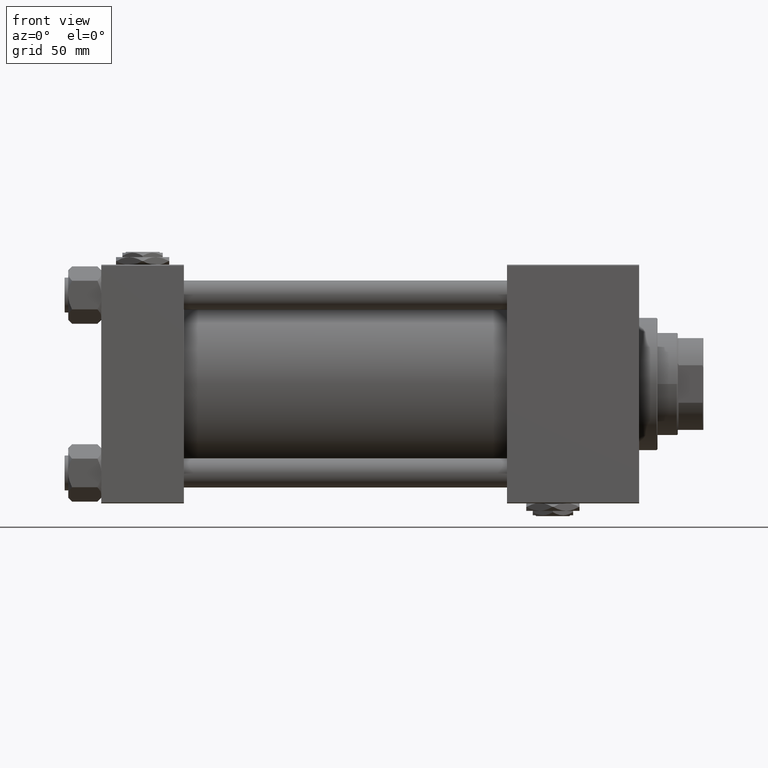
[diagram: clean part render]
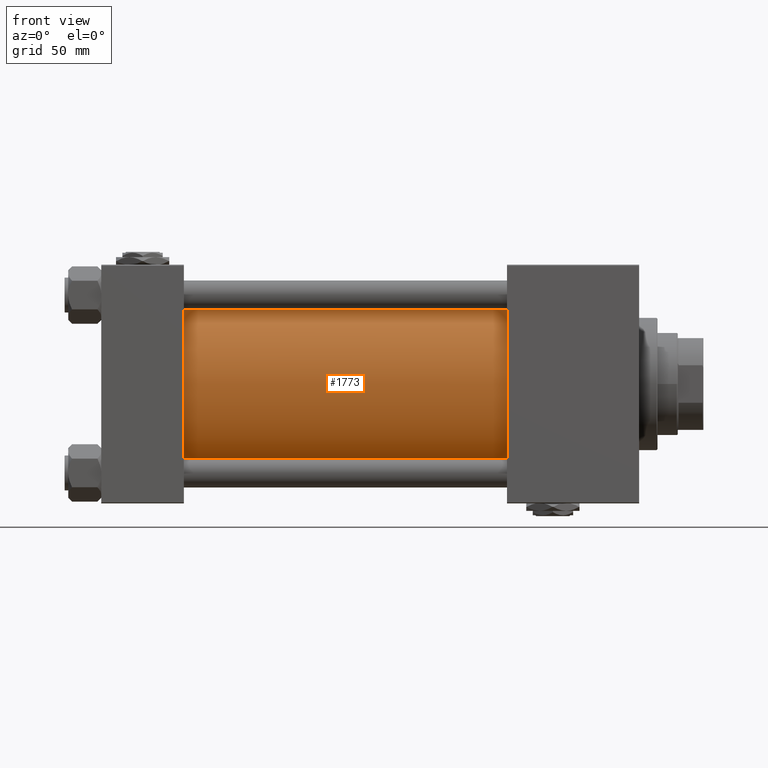
[diagram: same view with one face highlighted and labeled with its STEP entity id]
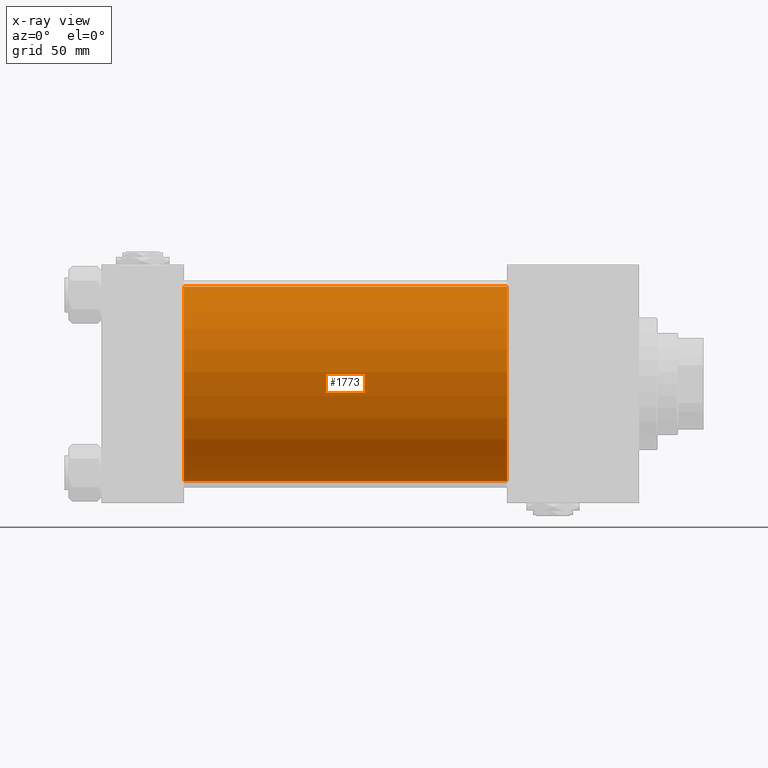
[diagram: x-ray of the same camera — body ghosted, the highlighted face saturated]
A machine part, front view. The second image highlights one B-rep face of the part: STEP entity #1773.
The next image is the same camera in x-ray: the body ghosted, the highlighted face saturated — about 3% of this face is hidden behind the body in this view.
In plain terms, the highlighted cylindrical surface (partial cylindrical patch) has radius 53 mm, axis along (-1, -0, -0).
Its self-contained STEP definition (entity closure, byte-faithful):
#1773 = ADVANCED_FACE ( 'NONE', ( #52384 ), #36570, .T. ) ;
#3366 = CARTESIAN_POINT ( 'NONE',  ( 220.9999999999999716, -2.602085213965210642E-15, 0.000000000000000000 ) ) ;
#3461 = EDGE_CURVE ( 'NONE', #45514, #37669, #5284, .T. ) ;
#5284 = LINE ( 'NONE', #18124, #9214 ) ;
#9214 = VECTOR ( 'NONE', #47311, 1000.000000000000000 ) ;
#10055 = AXIS2_PLACEMENT_3D ( 'NONE', #3366, #10842, #52644 ) ;
#10785 = ORIENTED_EDGE ( 'NONE', *, *, #45703, .F. ) ;
#10842 = DIRECTION ( 'NONE',  ( -1.000000000000000000, -0.000000000000000000, -0.000000000000000000 ) ) ;
#11498 = LINE ( 'NONE', #23554, #11975 ) ;
#11975 = VECTOR ( 'NONE', #19539, 1000.000000000000000 ) ;
#14062 = AXIS2_PLACEMENT_3D ( 'NONE', #32241, #40273, #40785 ) ;
#16042 = CARTESIAN_POINT ( 'NONE',  ( 220.9999999999999716, 3.888542821515762466E-15, -53.00000000000000711 ) ) ;
#16636 = CIRCLE ( 'NONE', #14062, 53.00000000000000711 ) ;
#18124 = CARTESIAN_POINT ( 'NONE',  ( 220.9999999999999716, 3.888542821515762466E-15, -53.00000000000000711 ) ) ;
#19170 = EDGE_CURVE ( 'NONE', #31351, #37669, #16636, .T. ) ;
#19539 = DIRECTION ( 'NONE',  ( -1.000000000000000000, -0.000000000000000000, -0.000000000000000000 ) ) ;
#19561 = CARTESIAN_POINT ( 'NONE',  ( 220.9999999999999716, -2.602085213965210642E-15, 53.00000000000000711 ) ) ;
#23554 = CARTESIAN_POINT ( 'NONE',  ( 220.9999999999999716, -2.602085213965210642E-15, 53.00000000000000711 ) ) ;
#23865 = ORIENTED_EDGE ( 'NONE', *, *, #35724, .T. ) ;
#24537 = CARTESIAN_POINT ( 'NONE',  ( 220.9999999999999716, -2.602085213965210642E-15, 0.000000000000000000 ) ) ;
#29800 = CIRCLE ( 'NONE', #38352, 53.00000000000000711 ) ;
#31351 = VERTEX_POINT ( 'NONE', #43315 ) ;
#32241 = CARTESIAN_POINT ( 'NONE',  ( 44.99999999999998579, -2.602085213965210642E-15, 0.000000000000000000 ) ) ;
#35724 = EDGE_CURVE ( 'NONE', #51312, #31351, #11498, .T. ) ;
#36566 = ORIENTED_EDGE ( 'NONE', *, *, #3461, .F. ) ;
#36570 = CYLINDRICAL_SURFACE ( 'NONE', #10055, 53.00000000000000711 ) ;
#37669 = VERTEX_POINT ( 'NONE', #41996 ) ;
#38352 = AXIS2_PLACEMENT_3D ( 'NONE', #24537, #52942, #40088 ) ;
#38592 = ORIENTED_EDGE ( 'NONE', *, *, #19170, .T. ) ;
#39642 = EDGE_LOOP ( 'NONE', ( #36566, #10785, #23865, #38592 ) ) ;
#40088 = DIRECTION ( 'NONE',  ( 0.000000000000000000, 0.000000000000000000, -1.000000000000000000 ) ) ;
#40273 = DIRECTION ( 'NONE',  ( 1.000000000000000000, -0.000000000000000000, 0.000000000000000000 ) ) ;
#40785 = DIRECTION ( 'NONE',  ( 0.000000000000000000, 0.000000000000000000, 1.000000000000000000 ) ) ;
#41996 = CARTESIAN_POINT ( 'NONE',  ( 44.99999999999998579, 3.888542821515762466E-15, -53.00000000000000711 ) ) ;
#43315 = CARTESIAN_POINT ( 'NONE',  ( 44.99999999999998579, -2.602085213965210642E-15, 53.00000000000000711 ) ) ;
#45514 = VERTEX_POINT ( 'NONE', #16042 ) ;
#45703 = EDGE_CURVE ( 'NONE', #51312, #45514, #29800, .T. ) ;
#47311 = DIRECTION ( 'NONE',  ( -1.000000000000000000, -0.000000000000000000, -0.000000000000000000 ) ) ;
#51312 = VERTEX_POINT ( 'NONE', #19561 ) ;
#52384 = FACE_OUTER_BOUND ( 'NONE', #39642, .T. ) ;
#52644 = DIRECTION ( 'NONE',  ( 0.000000000000000000, 0.000000000000000000, 1.000000000000000000 ) ) ;
#52942 = DIRECTION ( 'NONE',  ( 1.000000000000000000, 0.000000000000000000, 0.000000000000000000 ) ) ;